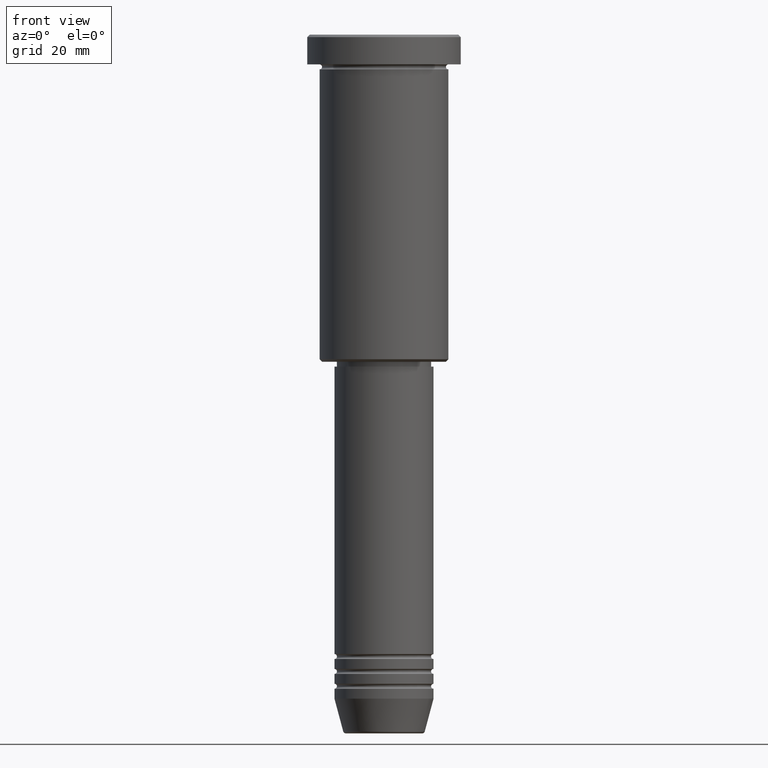
[diagram: clean part render]
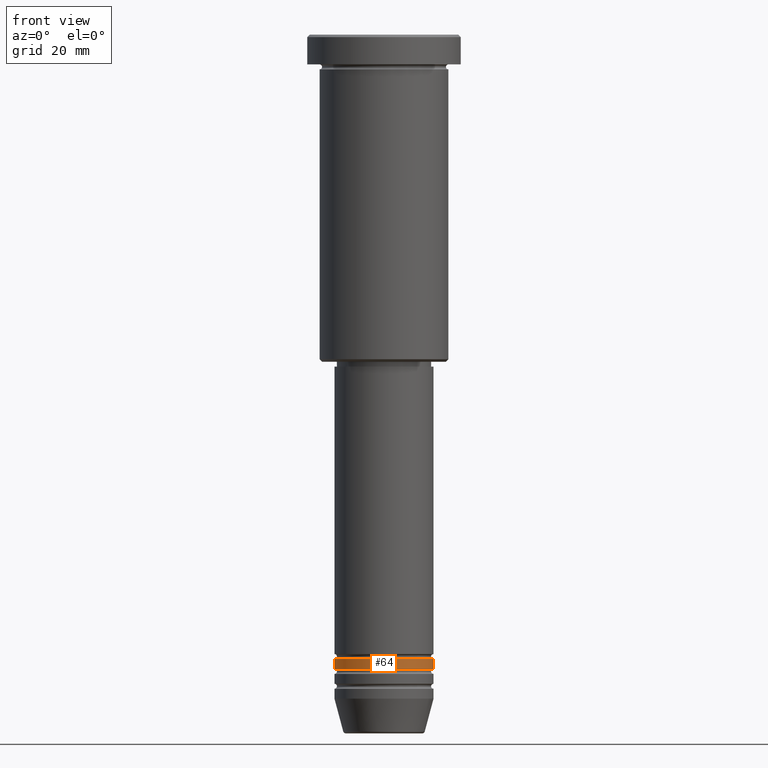
[diagram: same view with one face highlighted and labeled with its STEP entity id]
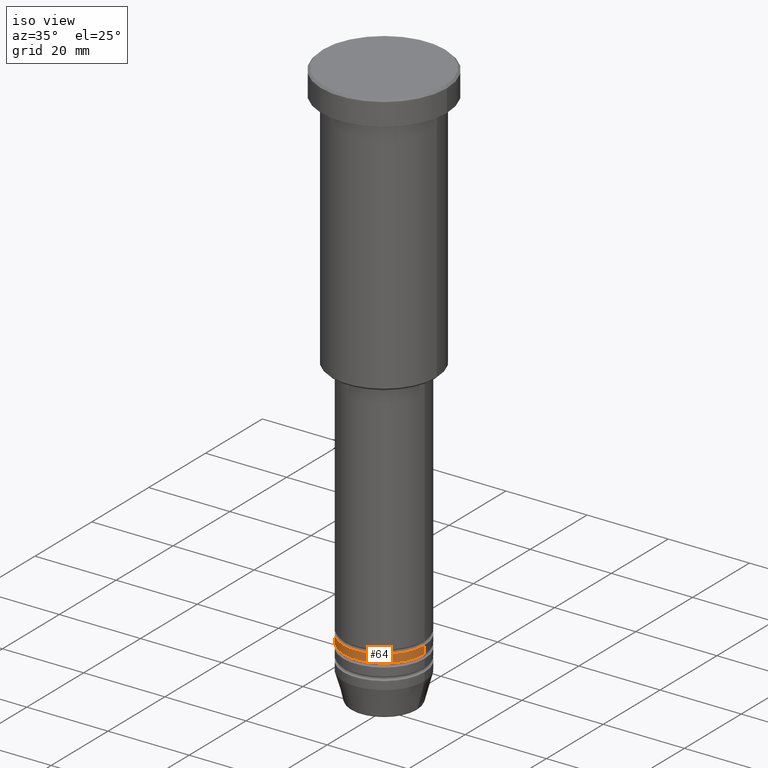
[diagram: same view with one face highlighted and labeled with its STEP entity id]
A machine part, front view. The second image highlights one B-rep face of the part: STEP entity #64.
A second angle (iso view) of the same face is appended — the face is thin or edge-on in the first view.
In plain terms, the highlighted cylindrical surface (partial cylindrical patch) has radius 10 mm, axis along (-0, -0, 1).
Its self-contained STEP definition (entity closure, byte-faithful):
#2 = VECTOR ( 'NONE', #1160, 1000.000000000000000 ) ;
#37 = AXIS2_PLACEMENT_3D ( 'NONE', #896, #46, #416 ) ;
#45 = DIRECTION ( 'NONE',  ( 1.000000000000000000, 0.000000000000000000, 0.000000000000000000 ) ) ;
#46 = DIRECTION ( 'NONE',  ( -0.000000000000000000, -0.000000000000000000, 1.000000000000000000 ) ) ;
#64 = ADVANCED_FACE ( 'NONE', ( #674 ), #587, .T. ) ;
#101 = EDGE_CURVE ( 'NONE', #359, #1174, #953, .T. ) ;
#128 = CARTESIAN_POINT ( 'NONE',  ( -10.00000000000000000, 1.224646799147353256E-15, -125.9999999999999716 ) ) ;
#163 = LINE ( 'NONE', #719, #2 ) ;
#236 = AXIS2_PLACEMENT_3D ( 'NONE', #926, #368, #463 ) ;
#250 = CIRCLE ( 'NONE', #37, 10.00000000000000000 ) ;
#252 = VECTOR ( 'NONE', #1063, 1000.000000000000000 ) ;
#282 = DIRECTION ( 'NONE',  ( -0.000000000000000000, -0.000000000000000000, 1.000000000000000000 ) ) ;
#320 = CARTESIAN_POINT ( 'NONE',  ( 10.00000000000000000, 0.000000000000000000, -127.9999999999999716 ) ) ;
#323 = VERTEX_POINT ( 'NONE', #389 ) ;
#329 = CARTESIAN_POINT ( 'NONE',  ( 0.000000000000000000, 0.000000000000000000, 0.000000000000000000 ) ) ;
#334 = CARTESIAN_POINT ( 'NONE',  ( 10.00000000000000000, 0.000000000000000000, 0.000000000000000000 ) ) ;
#359 = VERTEX_POINT ( 'NONE', #320 ) ;
#368 = DIRECTION ( 'NONE',  ( -0.000000000000000000, -0.000000000000000000, 1.000000000000000000 ) ) ;
#389 = CARTESIAN_POINT ( 'NONE',  ( -10.00000000000000000, 1.224646799147353256E-15, -127.9999999999999716 ) ) ;
#416 = DIRECTION ( 'NONE',  ( 1.000000000000000000, 0.000000000000000000, 0.000000000000000000 ) ) ;
#439 = ORIENTED_EDGE ( 'NONE', *, *, #101, .T. ) ;
#463 = DIRECTION ( 'NONE',  ( 1.000000000000000000, 0.000000000000000000, 0.000000000000000000 ) ) ;
#587 = CYLINDRICAL_SURFACE ( 'NONE', #993, 10.00000000000000000 ) ;
#674 = FACE_OUTER_BOUND ( 'NONE', #1120, .T. ) ;
#719 = CARTESIAN_POINT ( 'NONE',  ( -10.00000000000000000, 1.224646799147353256E-15, 0.000000000000000000 ) ) ;
#741 = EDGE_CURVE ( 'NONE', #323, #1151, #163, .T. ) ;
#763 = CIRCLE ( 'NONE', #236, 10.00000000000000000 ) ;
#768 = ORIENTED_EDGE ( 'NONE', *, *, #836, .T. ) ;
#836 = EDGE_CURVE ( 'NONE', #323, #359, #250, .T. ) ;
#856 = CARTESIAN_POINT ( 'NONE',  ( 10.00000000000000000, 0.000000000000000000, -125.9999999999999716 ) ) ;
#866 = ORIENTED_EDGE ( 'NONE', *, *, #741, .F. ) ;
#892 = ORIENTED_EDGE ( 'NONE', *, *, #1044, .F. ) ;
#896 = CARTESIAN_POINT ( 'NONE',  ( 0.000000000000000000, 0.000000000000000000, -127.9999999999999716 ) ) ;
#926 = CARTESIAN_POINT ( 'NONE',  ( 0.000000000000000000, 0.000000000000000000, -125.9999999999999716 ) ) ;
#953 = LINE ( 'NONE', #334, #252 ) ;
#993 = AXIS2_PLACEMENT_3D ( 'NONE', #329, #282, #45 ) ;
#1044 = EDGE_CURVE ( 'NONE', #1151, #1174, #763, .T. ) ;
#1063 = DIRECTION ( 'NONE',  ( -0.000000000000000000, -0.000000000000000000, 1.000000000000000000 ) ) ;
#1120 = EDGE_LOOP ( 'NONE', ( #866, #768, #439, #892 ) ) ;
#1151 = VERTEX_POINT ( 'NONE', #128 ) ;
#1160 = DIRECTION ( 'NONE',  ( -0.000000000000000000, -0.000000000000000000, 1.000000000000000000 ) ) ;
#1174 = VERTEX_POINT ( 'NONE', #856 ) ;